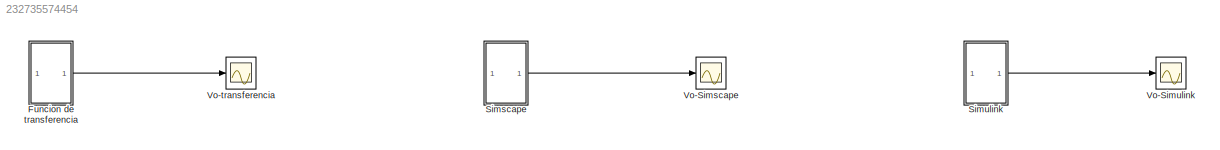
MODEL slx_232735574454
KIND model
CONFIG AbsTol = auto
CONFIG EnableMultiTasking = off
CONFIG FixedStep = auto
CONFIG MaxStep = auto
CONFIG MinStep = auto
CONFIG RelTol = 1e-3
CONFIG SampleTimeConstraint = Unconstrained
CONFIG SolverName = VariableStepAuto
CONFIG StartTime = 0.0
CONFIG StopTime = 10.0
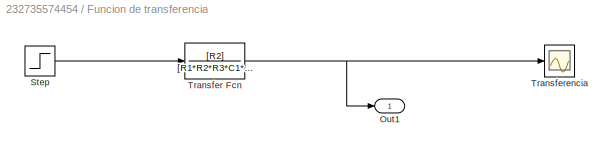
BLOCK [SubSystem] Funcion de transferencia
BLOCK [Outport] Funcion de transferencia/Out1
BLOCK [Step] Funcion de transferencia/Step
  SampleTime = 0
  Time = 0
BLOCK [TransferFcn] Funcion de transferencia/Transfer Fcn
  Denominator = [R1*R2*R3*C1*C2 R1*R2*C2 0]
  Numerator = [R2]
BLOCK [Scope] Funcion de transferencia/Transferencia
  Floating = off
  NumInputPorts = 1
  ScopeSpecificationString = Simulink.scopes.TimeScopeBlockCfg('CurrentConfiguration', extmgr.ConfigurationSet(extmgr.Configuration('Core','General UI',true),extmgr.Configuration('Core','Source UI',true),extmgr.Configuration('Sources','WiredSimulink',true,'DataLoggingVariableName','ScopeData1'),extmgr.Configuration('Visuals','Time Domain',true,'SerializedDisplays',{struct('MinYLimReal','-2.375','MaxYLimReal','21.375','YLabelR...<+1511ch>
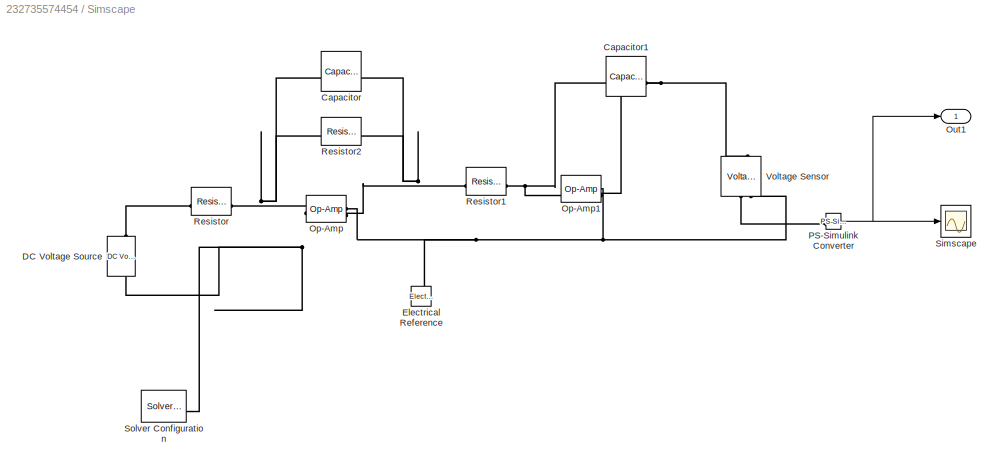
BLOCK [SubSystem] Simscape
BLOCK [Reference] Simscape/Capacitor  REF=fl_lib/Electrical/Electrical Elements/Capacitor
  SourceBlock = fl_lib/Electrical/Electrical Elements/Capacitor
  SourceType = Capacitor
BLOCK [Reference] Simscape/Capacitor1  REF=fl_lib/Electrical/Electrical Elements/Capacitor
  SourceBlock = fl_lib/Electrical/Electrical Elements/Capacitor
  SourceType = Capacitor
BLOCK [Reference] Simscape/DC Voltage Source  REF=fl_lib/Electrical/Electrical Sources/DC Voltage Source
  NameLocation = right
  SourceBlock = fl_lib/Electrical/Electrical Sources/DC Voltage Source
  SourceType = DC Voltage Source
BLOCK [Reference] Simscape/Electrical Reference  REF=fl_lib/Electrical/Electrical Elements/Electrical Reference
  NameLocation = right
  SourceBlock = fl_lib/Electrical/Electrical Elements/Electrical Reference
  SourceType = Electrical Reference
BLOCK [Reference] Simscape/Op-Amp  REF=fl_lib/Electrical/Electrical Elements/Op-Amp
  SourceBlock = fl_lib/Electrical/Electrical Elements/Op-Amp
  SourceType = Op-Amp
BLOCK [Reference] Simscape/Op-Amp1  REF=fl_lib/Electrical/Electrical Elements/Op-Amp
  SourceBlock = fl_lib/Electrical/Electrical Elements/Op-Amp
  SourceType = Op-Amp
BLOCK [Outport] Simscape/Out1
BLOCK [Reference] Simscape/PS-Simulink Converter  REF=nesl_utility/PS-Simulink
Converter
  SourceBlock = nesl_utility/PS-Simulink\nConverter
  SourceType = PS-Simulink\nConverter
BLOCK [Reference] Simscape/Resistor  REF=fl_lib/Electrical/Electrical Elements/Resistor
  SourceBlock = fl_lib/Electrical/Electrical Elements/Resistor
  SourceType = Resistor
BLOCK [Reference] Simscape/Resistor1  REF=fl_lib/Electrical/Electrical Elements/Resistor
  SourceBlock = fl_lib/Electrical/Electrical Elements/Resistor
  SourceType = Resistor
BLOCK [Reference] Simscape/Resistor2  REF=fl_lib/Electrical/Electrical Elements/Resistor
  SourceBlock = fl_lib/Electrical/Electrical Elements/Resistor
  SourceType = Resistor
BLOCK [Scope] Simscape/Simscape
  Floating = off
  NumInputPorts = 1
  ScopeSpecificationString = Simulink.scopes.TimeScopeBlockCfg('CurrentConfiguration', extmgr.ConfigurationSet(extmgr.Configuration('Core','General UI',true),extmgr.Configuration('Core','Source UI',true),extmgr.Configuration('Sources','WiredSimulink',true),extmgr.Configuration('Visuals','Time Domain',true,'SerializedDisplays',{struct('MinYLimReal','-2.375','MaxYLimReal','21.375','YLabelReal','','MinYLimMag','0.00000','MaxYLim...<+1446ch>
BLOCK [Reference] Simscape/Solver Configuration  REF=nesl_utility/Solver
Configuration
  SourceBlock = nesl_utility/Solver\nConfiguration
  SourceType = Solver\nConfiguration
BLOCK [Reference] Simscape/Voltage Sensor  REF=fl_lib/Electrical/Electrical Sensors/Voltage Sensor
  NameLocation = left
  SourceBlock = fl_lib/Electrical/Electrical Sensors/Voltage Sensor
  SourceType = Voltage Sensor
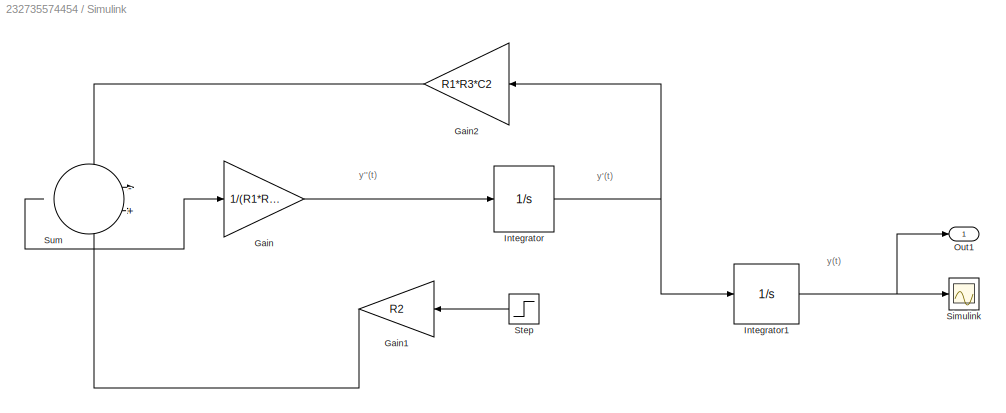
BLOCK [SubSystem] Simulink
BLOCK [Gain] Simulink/Gain
  Gain = 1/(R1*R2*R3*C1*C2)
BLOCK [Gain] Simulink/Gain1
  Gain = R2
  NameLocation = top
BLOCK [Gain] Simulink/Gain2
  Gain = R1*R3*C2
  NameLocation = top
BLOCK [Integrator] Simulink/Integrator
BLOCK [Integrator] Simulink/Integrator1
BLOCK [Outport] Simulink/Out1
BLOCK [Scope] Simulink/Simulink
  Floating = off
  NumInputPorts = 1
  ScopeSpecificationString = Simulink.scopes.TimeScopeBlockCfg('CurrentConfiguration', extmgr.ConfigurationSet(extmgr.Configuration('Core','General UI',true),extmgr.Configuration('Core','Source UI',true),extmgr.Configuration('Sources','WiredSimulink',true,'DataLoggingVariableName','ScopeData1'),extmgr.Configuration('Visuals','Time Domain',true,'SerializedDisplays',{struct('MinYLimReal','-2.375','MaxYLimReal','21.375','YLabelR...<+1478ch>
BLOCK [Step] Simulink/Step
  NameLocation = top
  SampleTime = 0
  Time = 0
BLOCK [Sum] Simulink/Sum
  Inputs = -+
  NameLocation = top
BLOCK [Scope] Vo-Simscape
  Floating = off
  NumInputPorts = 1
  ScopeSpecificationString = Simulink.scopes.TimeScopeBlockCfg('CurrentConfiguration', extmgr.ConfigurationSet(extmgr.Configuration('Core','General UI',true),extmgr.Configuration('Core','Source UI',true),extmgr.Configuration('Sources','WiredSimulink',true,'DataLoggingVariableName','ScopeData1'),extmgr.Configuration('Visuals','Time Domain',true,'SerializedDisplays',{struct('MinYLimReal','-2.375','MaxYLimReal','21.375','YLabelR...<+1475ch>
BLOCK [Scope] Vo-Simulink
  Floating = off
  NumInputPorts = 1
  ScopeSpecificationString = Simulink.scopes.TimeScopeBlockCfg('CurrentConfiguration', extmgr.ConfigurationSet(extmgr.Configuration('Core','General UI',true),extmgr.Configuration('Core','Source UI',true),extmgr.Configuration('Sources','WiredSimulink',true,'DataLoggingVariableName','ScopeData3'),extmgr.Configuration('Visuals','Time Domain',true,'SerializedDisplays',{struct('MinYLimReal','-2.375','MaxYLimReal','21.375','YLabelR...<+1475ch>
BLOCK [Scope] Vo-transferencia
  Floating = off
  NumInputPorts = 1
  ScopeSpecificationString = Simulink.scopes.TimeScopeBlockCfg('CurrentConfiguration', extmgr.ConfigurationSet(extmgr.Configuration('Core','General UI',true),extmgr.Configuration('Core','Source UI',true),extmgr.Configuration('Sources','WiredSimulink',true,'DataLoggingVariableName','ScopeData2'),extmgr.Configuration('Visuals','Time Domain',true,'SerializedDisplays',{struct('MinYLimReal','-2.375','MaxYLimReal','21.375','YLabelR...<+1523ch>
ANNOTATION Simulink: y''(t)
ANNOTATION Simulink: y'(t)
ANNOTATION Simulink: y(t)
LINE Funcion de transferencia/Step:1 -> Funcion de transferencia/Transfer Fcn:1
NET Funcion de transferencia/Transfer Fcn:1 -> Funcion de transferencia/Out1:1, Funcion de transferencia/Transferencia:1
LINE Funcion de transferencia:1 -> Vo-transferencia:1
NET Simscape/PS-Simulink Converter:1 -> Simscape/Out1:1, Simscape/Simscape:1
LINE Simscape:1 -> Vo-Simscape:1
LINE Simulink/Gain1:1 -> Simulink/Sum:2
LINE Simulink/Gain2:1 -> Simulink/Sum:1
LINE Simulink/Gain:1 -> Simulink/Integrator:1
NET Simulink/Integrator1:1 -> Simulink/Out1:1, Simulink/Simulink:1
NET Simulink/Integrator:1 -> Simulink/Gain2:1, Simulink/Integrator1:1
LINE Simulink/Step:1 -> Simulink/Gain1:1
LINE Simulink/Sum:1 -> Simulink/Gain:1
LINE Simulink:1 -> Vo-Simulink:1
PNET net1: Simscape/Capacitor1:LConn1 -- Simscape/Op-Amp1:LConn2 -- Simscape/Resistor1:RConn1
PNET net2: Simscape/Capacitor1:RConn1 -- Simscape/Op-Amp1:RConn1 -- Simscape/Voltage Sensor:LConn1
PNET net3: Simscape/Capacitor:LConn1 -- Simscape/Op-Amp:LConn2 -- Simscape/Resistor2:LConn1 -- Simscape/Resistor:RConn1
PNET net4: Simscape/Capacitor:RConn1 -- Simscape/Op-Amp:RConn1 -- Simscape/Resistor1:LConn1 -- Simscape/Resistor2:RConn1
PLINE Simscape/DC Voltage Source:LConn1 -- Simscape/Resistor:LConn1
PNET net5: Simscape/DC Voltage Source:RConn1 -- Simscape/Electrical Reference:LConn1 -- Simscape/Op-Amp1:LConn1 -- Simscape/Op-Amp:LConn1 -- Simscape/Solver Configuration:RConn1 -- Simscape/Voltage Sensor:RConn2
PLINE Simscape/PS-Simulink Converter:LConn1 -- Simscape/Voltage Sensor:RConn1
note: NET lines group one-source signal fan-out (src -> all destinations, sorted); 1:1 wires keep LINE; PNET lines group multi-terminal physical nets as a canonical sorted terminal list (undirected conserving connections); 2-terminal nets keep the pairwise PLINE form
